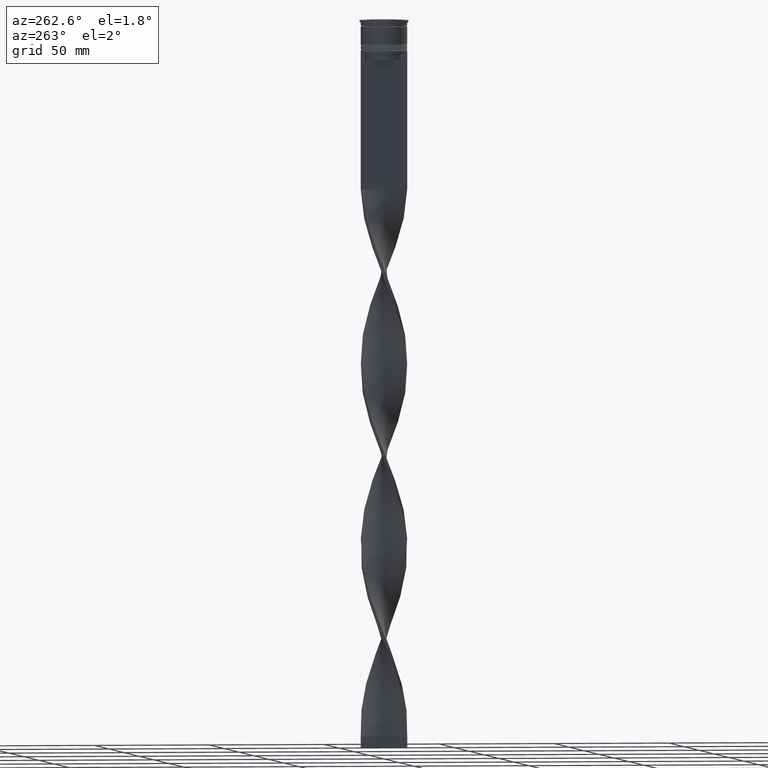
[diagram: clean part render]
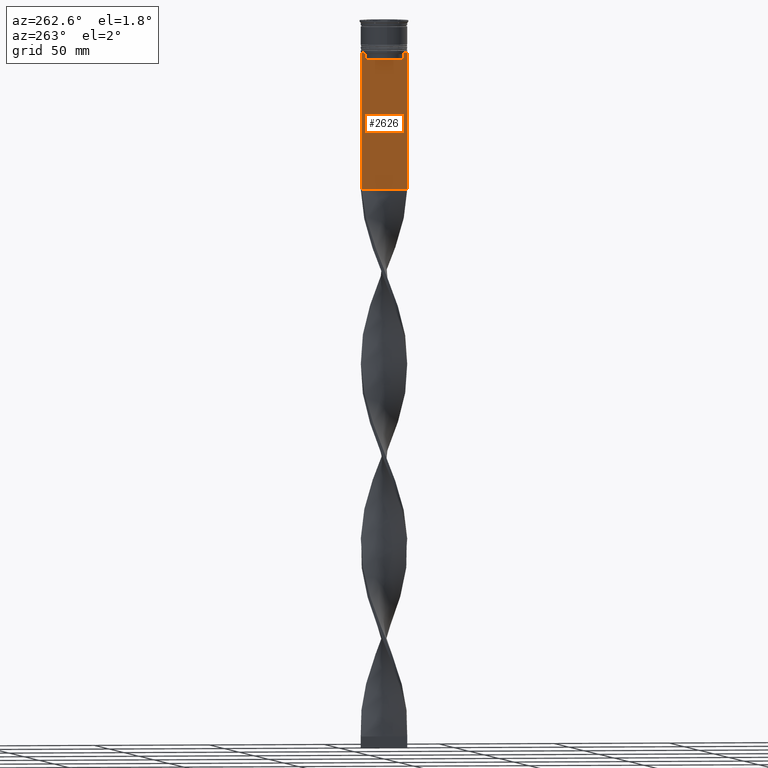
[diagram: same view with one face highlighted and labeled with its STEP entity id]
A machine part, auxiliary view. The second image highlights one B-rep face of the part: STEP entity #2626.
In plain terms, the highlighted planar face has unit normal (-1, 0, 0).
Its self-contained STEP definition (entity closure, byte-faithful):
#49 = ORIENTED_EDGE ( 'NONE', *, *, #988, .F. ) ;
#64 = ORIENTED_EDGE ( 'NONE', *, *, #3580, .F. ) ;
#231 = CARTESIAN_POINT ( 'NONE',  ( -0.7499999999999997780, 9.999999999999998224, 6.056171120131581098 ) ) ;
#284 = ORIENTED_EDGE ( 'NONE', *, *, #1451, .F. ) ;
#315 = ORIENTED_EDGE ( 'NONE', *, *, #2512, .F. ) ;
#398 = CARTESIAN_POINT ( 'NONE',  ( -0.7499999999999997780, -9.871550030263740894, -14.00000000000000178 ) ) ;
#461 = DIRECTION ( 'NONE',  ( 0.000000000000000000, 0.000000000000000000, -1.000000000000000000 ) ) ;
#463 = DIRECTION ( 'NONE',  ( 0.000000000000000000, -1.000000000000000000, 0.000000000000000000 ) ) ;
#477 = CARTESIAN_POINT ( 'NONE',  ( -0.7499999999999997780, -8.533766903463440912, -14.33335220807192201 ) ) ;
#503 = VECTOR ( 'NONE', #2615, 1000.000000000000000 ) ;
#504 = VECTOR ( 'NONE', #758, 1000.000000000000000 ) ;
#549 = LINE ( 'NONE', #858, #3697 ) ;
#575 = VECTOR ( 'NONE', #2310, 1000.000000000000000 ) ;
#583 = B_SPLINE_CURVE_WITH_KNOTS ( 'NONE', 3,
 ( #2414, #477, #4062, #1774 ),
 .UNSPECIFIED., .F., .F.,
 ( 4, 4 ),
 ( 0.03866293624047253963, 0.03937282246709321309 ),
 .UNSPECIFIED. ) ;
#613 = ORIENTED_EDGE ( 'NONE', *, *, #3194, .T. ) ;
#695 = ORIENTED_EDGE ( 'NONE', *, *, #2515, .F. ) ;
#700 = DIRECTION ( 'NONE',  ( 0.000000000000000000, -1.000000000000000000, 0.000000000000000000 ) ) ;
#701 = LINE ( 'NONE', #1337, #575 ) ;
#716 = ORIENTED_EDGE ( 'NONE', *, *, #4290, .F. ) ;
#749 = VECTOR ( 'NONE', #461, 1000.000000000000000 ) ;
#758 = DIRECTION ( 'NONE',  ( 0.000000000000000000, 0.000000000000000000, -1.000000000000000000 ) ) ;
#784 = AXIS2_PLACEMENT_3D ( 'NONE', #3878, #1286, #2215 ) ;
#858 = CARTESIAN_POINT ( 'NONE',  ( -0.7499999999999997780, -10.00000000000000533, -14.00000000000000178 ) ) ;
#988 = EDGE_CURVE ( 'NONE', #3427, #2465, #2032, .T. ) ;
#1039 = CARTESIAN_POINT ( 'NONE',  ( -0.7499999999999997780, -10.00000000000000533, -14.00000000000000178 ) ) ;
#1169 = CARTESIAN_POINT ( 'NONE',  ( -0.7499999999999997780, 8.366450860430608927, -17.00000000000000000 ) ) ;
#1197 = VECTOR ( 'NONE', #2457, 1000.000000000000000 ) ;
#1199 = CARTESIAN_POINT ( 'NONE',  ( -0.7499999999999997780, -10.00000000000000533, -14.00000000000000178 ) ) ;
#1282 = LINE ( 'NONE', #1199, #3969 ) ;
#1286 = DIRECTION ( 'NONE',  ( -1.000000000000000000, 0.000000000000000000, 0.000000000000000000 ) ) ;
#1337 = CARTESIAN_POINT ( 'NONE',  ( -0.7499999999999997780, -10.00000000000000533, 6.056171120131581098 ) ) ;
#1439 = CARTESIAN_POINT ( 'NONE',  ( -0.7499999999999997780, -8.366450860430608927, 0.000000000000000000 ) ) ;
#1442 = CARTESIAN_POINT ( 'NONE',  ( -0.7499999999999997780, 8.366450860430608927, -14.50000000000000000 ) ) ;
#1451 = EDGE_CURVE ( 'NONE', #3899, #2507, #2831, .T. ) ;
#1462 = CARTESIAN_POINT ( 'NONE',  ( -0.7499999999999997780, 8.868342573446296839, -14.00000000000000178 ) ) ;
#1704 = DIRECTION ( 'NONE',  ( 0.000000000000000000, -1.000000000000000000, 0.000000000000000000 ) ) ;
#1774 = CARTESIAN_POINT ( 'NONE',  ( -0.7499999999999997780, -8.868342573446296839, -14.00000000000000178 ) ) ;
#1790 = CARTESIAN_POINT ( 'NONE',  ( -0.7499999999999997780, 8.400000000000003908, -17.00000000000000000 ) ) ;
#1843 = CARTESIAN_POINT ( 'NONE',  ( -0.7499999999999997780, 8.701063075415252257, -14.16668448247791723 ) ) ;
#1850 = DIRECTION ( 'NONE',  ( 0.000000000000000000, -1.000000000000000000, 0.000000000000000000 ) ) ;
#1873 = ORIENTED_EDGE ( 'NONE', *, *, #2224, .F. ) ;
#1907 = CARTESIAN_POINT ( 'NONE',  ( -0.7499999999999997780, -10.00000000000000533, -14.00000000000000178 ) ) ;
#1912 = CARTESIAN_POINT ( 'NONE',  ( -0.7499999999999997780, -8.366450860430608927, -14.50000000000000000 ) ) ;
#1970 = ORIENTED_EDGE ( 'NONE', *, *, #2442, .F. ) ;
#2032 = LINE ( 'NONE', #3369, #2111 ) ;
#2111 = VECTOR ( 'NONE', #1704, 1000.000000000000000 ) ;
#2158 = VERTEX_POINT ( 'NONE', #1912 ) ;
#2215 = DIRECTION ( 'NONE',  ( 0.000000000000000000, 0.000000000000000000, 1.000000000000000000 ) ) ;
#2224 = EDGE_CURVE ( 'NONE', #3331, #4155, #3634, .T. ) ;
#2226 = CARTESIAN_POINT ( 'NONE',  ( -0.7499999999999997780, 8.366450860430608927, -14.50000000000000000 ) ) ;
#2231 = VECTOR ( 'NONE', #3880, 1000.000000000000000 ) ;
#2243 = CARTESIAN_POINT ( 'NONE',  ( -0.7499999999999997780, 8.868342573446296839, -14.00000000000000178 ) ) ;
#2265 = CARTESIAN_POINT ( 'NONE',  ( -0.7499999999999998890, -10.00000000000000533, -73.00000000000001421 ) ) ;
#2310 = DIRECTION ( 'NONE',  ( 0.000000000000000000, 0.000000000000000000, -1.000000000000000000 ) ) ;
#2339 = CARTESIAN_POINT ( 'NONE',  ( -0.7499999999999997780, -10.00000000000000533, -73.00000000000001421 ) ) ;
#2360 = VERTEX_POINT ( 'NONE', #3795 ) ;
#2414 = CARTESIAN_POINT ( 'NONE',  ( -0.7499999999999997780, -8.366450860430608927, -14.50000000000000000 ) ) ;
#2442 = EDGE_CURVE ( 'NONE', #3443, #3331, #701, .T. ) ;
#2457 = DIRECTION ( 'NONE',  ( -0.000000000000000000, -0.000000000000000000, 1.000000000000000000 ) ) ;
#2465 = VERTEX_POINT ( 'NONE', #3844 ) ;
#2477 = ORIENTED_EDGE ( 'NONE', *, *, #3096, .F. ) ;
#2507 = VERTEX_POINT ( 'NONE', #1169 ) ;
#2512 = EDGE_CURVE ( 'NONE', #4111, #3443, #549, .T. ) ;
#2515 = EDGE_CURVE ( 'NONE', #3347, #3899, #4161, .T. ) ;
#2538 = PLANE ( 'NONE',  #784 ) ;
#2585 = CARTESIAN_POINT ( 'NONE',  ( -0.7499999999999997780, 9.999999999999998224, -14.00000000000000178 ) ) ;
#2615 = DIRECTION ( 'NONE',  ( 0.000000000000000000, 1.000000000000000000, 0.000000000000000000 ) ) ;
#2626 = ADVANCED_FACE ( 'NONE', ( #3262 ), #2538, .T. ) ;
#2664 = EDGE_LOOP ( 'NONE', ( #695, #2477, #49, #613, #1873, #1970, #315, #64, #2773, #3540, #716, #284 ) ) ;
#2773 = ORIENTED_EDGE ( 'NONE', *, *, #4130, .F. ) ;
#2831 = LINE ( 'NONE', #3781, #749 ) ;
#2861 = CARTESIAN_POINT ( 'NONE',  ( -0.7499999999999997780, -8.366450860430608927, -17.00000000000000000 ) ) ;
#2930 = VECTOR ( 'NONE', #700, 1000.000000000000000 ) ;
#3096 = EDGE_CURVE ( 'NONE', #2465, #3347, #1282, .T. ) ;
#3103 = LINE ( 'NONE', #1439, #1197 ) ;
#3169 = CARTESIAN_POINT ( 'NONE',  ( -0.7499999999999997780, 8.533766897779926808, -14.33335221373273782 ) ) ;
#3190 = VERTEX_POINT ( 'NONE', #2861 ) ;
#3194 = EDGE_CURVE ( 'NONE', #3427, #4155, #4172, .T. ) ;
#3226 = LINE ( 'NONE', #1790, #2231 ) ;
#3262 = FACE_OUTER_BOUND ( 'NONE', #2664, .T. ) ;
#3331 = VERTEX_POINT ( 'NONE', #2265 ) ;
#3347 = VERTEX_POINT ( 'NONE', #2243 ) ;
#3369 = CARTESIAN_POINT ( 'NONE',  ( -0.7499999999999997780, -10.00000000000000533, -14.00000000000000178 ) ) ;
#3424 = LINE ( 'NONE', #1039, #2930 ) ;
#3427 = VERTEX_POINT ( 'NONE', #2585 ) ;
#3443 = VERTEX_POINT ( 'NONE', #1907 ) ;
#3540 = ORIENTED_EDGE ( 'NONE', *, *, #4016, .F. ) ;
#3580 = EDGE_CURVE ( 'NONE', #2360, #4111, #3424, .T. ) ;
#3634 = LINE ( 'NONE', #2339, #503 ) ;
#3697 = VECTOR ( 'NONE', #463, 1000.000000000000000 ) ;
#3781 = CARTESIAN_POINT ( 'NONE',  ( -0.7499999999999997780, 8.366450860430608927, 0.000000000000000000 ) ) ;
#3795 = CARTESIAN_POINT ( 'NONE',  ( -0.7499999999999997780, -8.868342573446296839, -14.00000000000000178 ) ) ;
#3844 = CARTESIAN_POINT ( 'NONE',  ( -0.7499999999999997780, 9.871550030263740894, -14.00000000000000178 ) ) ;
#3878 = CARTESIAN_POINT ( 'NONE',  ( -0.7499999999999997780, -10.00000000000000533, 6.056171120131581098 ) ) ;
#3880 = DIRECTION ( 'NONE',  ( 0.000000000000000000, -1.000000000000000000, 0.000000000000000000 ) ) ;
#3899 = VERTEX_POINT ( 'NONE', #2226 ) ;
#3969 = VECTOR ( 'NONE', #1850, 1000.000000000000000 ) ;
#4016 = EDGE_CURVE ( 'NONE', #3190, #2158, #3103, .T. ) ;
#4062 = CARTESIAN_POINT ( 'NONE',  ( -0.7499999999999997780, -8.701063080777123204, -14.16668447713511547 ) ) ;
#4111 = VERTEX_POINT ( 'NONE', #398 ) ;
#4130 = EDGE_CURVE ( 'NONE', #2158, #2360, #583, .T. ) ;
#4155 = VERTEX_POINT ( 'NONE', #4190 ) ;
#4161 = B_SPLINE_CURVE_WITH_KNOTS ( 'NONE', 3,
 ( #1462, #1843, #3169, #1442 ),
 .UNSPECIFIED., .F., .F.,
 ( 4, 4 ),
 ( 0.01512225952876174867, 0.01583070519299695222 ),
 .UNSPECIFIED. ) ;
#4172 = LINE ( 'NONE', #231, #504 ) ;
#4190 = CARTESIAN_POINT ( 'NONE',  ( -0.7499999999999997780, 9.999999999999998224, -73.00000000000001421 ) ) ;
#4290 = EDGE_CURVE ( 'NONE', #2507, #3190, #3226, .T. ) ;